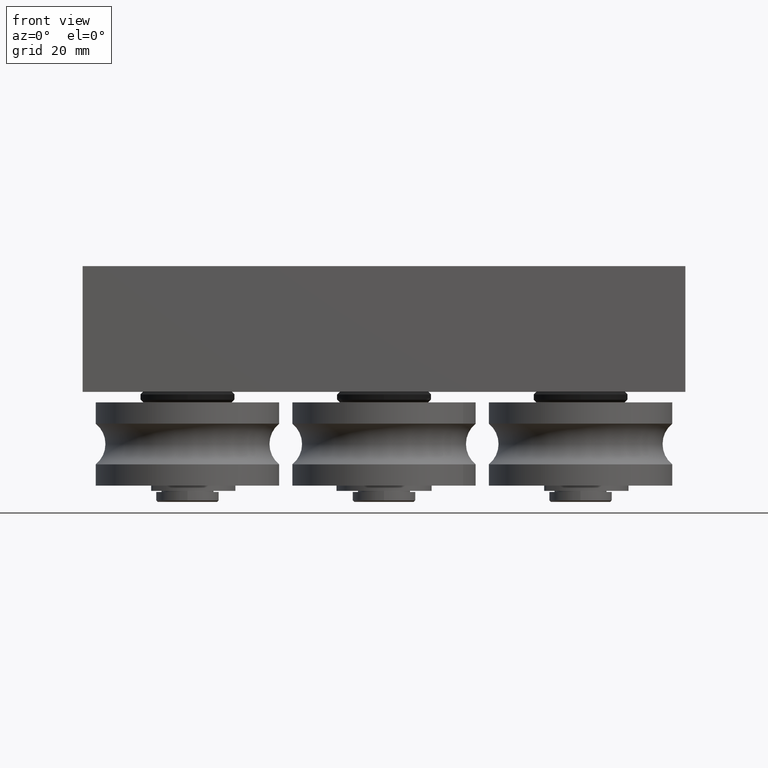
[diagram: clean part render]
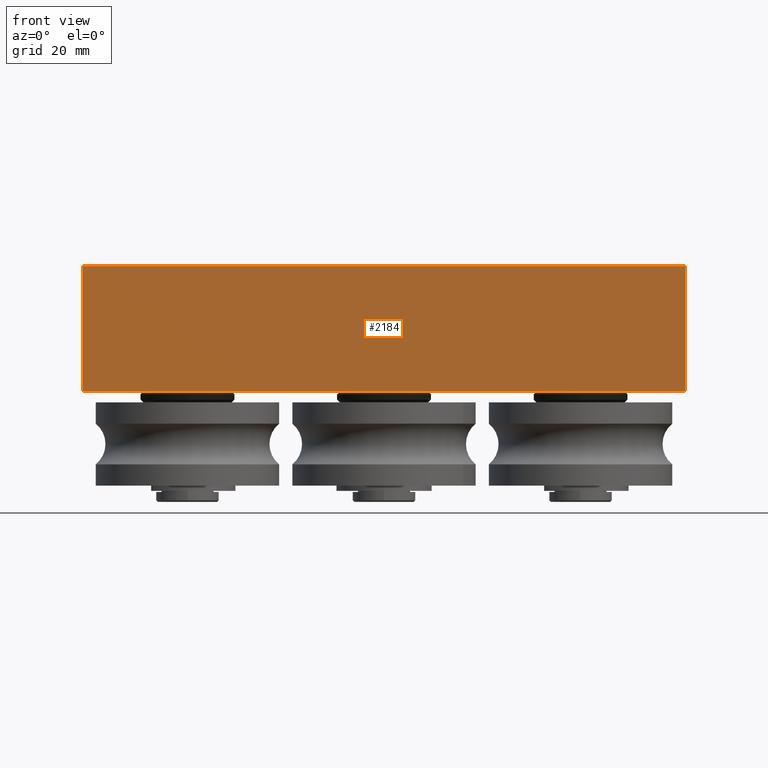
[diagram: same view with one face highlighted and labeled with its STEP entity id]
A machine part, front view. The second image highlights one B-rep face of the part: STEP entity #2184.
In plain terms, the highlighted planar face has unit normal (0, -1, 0).
Its self-contained STEP definition (entity closure, byte-faithful):
#196=PLANE('',#2556);
#323=FACE_OUTER_BOUND('',#468,.T.);
#468=EDGE_LOOP('',(#1604,#1605,#1606,#1607));
#647=LINE('',#3643,#787);
#650=LINE('',#3649,#790);
#651=LINE('',#3651,#791);
#652=LINE('',#3652,#792);
#787=VECTOR('',#2916,10.);
#790=VECTOR('',#2921,10.);
#791=VECTOR('',#2922,10.);
#792=VECTOR('',#2923,10.);
#1074=VERTEX_POINT('',#3640);
#1075=VERTEX_POINT('',#3642);
#1077=VERTEX_POINT('',#3648);
#1078=VERTEX_POINT('',#3650);
#1280=EDGE_CURVE('',#1075,#1074,#647,.T.);
#1283=EDGE_CURVE('',#1074,#1077,#650,.T.);
#1284=EDGE_CURVE('',#1078,#1077,#651,.T.);
#1285=EDGE_CURVE('',#1075,#1078,#652,.T.);
#1604=ORIENTED_EDGE('',*,*,#1283,.T.);
#1605=ORIENTED_EDGE('',*,*,#1284,.F.);
#1606=ORIENTED_EDGE('',*,*,#1285,.F.);
#1607=ORIENTED_EDGE('',*,*,#1280,.T.);
#2184=ADVANCED_FACE('',(#323),#196,.T.);
#2556=AXIS2_PLACEMENT_3D('',#3647,#2919,#2920);
#2916=DIRECTION('',(0.,0.,1.));
#2919=DIRECTION('center_axis',(0.,-1.,0.));
#2920=DIRECTION('ref_axis',(0.,0.,-1.));
#2921=DIRECTION('',(-1.,0.,0.));
#2922=DIRECTION('',(0.,0.,1.));
#2923=DIRECTION('',(-1.,0.,0.));
#3640=CARTESIAN_POINT('',(57.5,-32.5,24.));
#3642=CARTESIAN_POINT('',(57.5,-32.5,0.));
#3643=CARTESIAN_POINT('',(57.5,-32.5,0.));
#3647=CARTESIAN_POINT('Origin',(57.5,-32.5,0.));
#3648=CARTESIAN_POINT('',(-57.5,-32.5,24.));
#3649=CARTESIAN_POINT('',(57.5,-32.5,24.));
#3650=CARTESIAN_POINT('',(-57.5,-32.5,0.));
#3651=CARTESIAN_POINT('',(-57.5,-32.5,0.));
#3652=CARTESIAN_POINT('',(57.5,-32.5,0.));